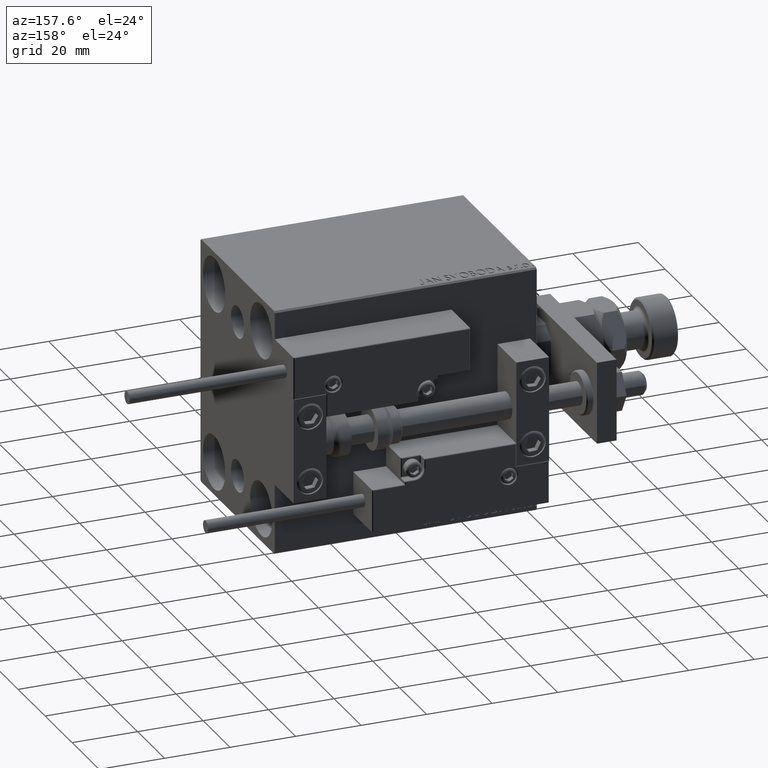
[diagram: clean part render]
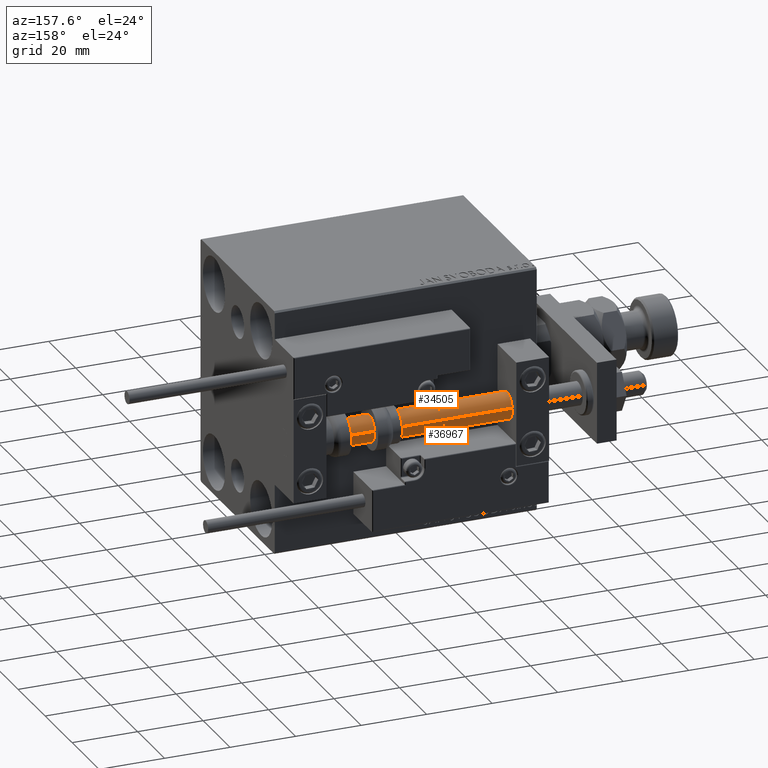
[diagram: same view with one multi-face feature highlighted, each face labeled with its STEP entity id]
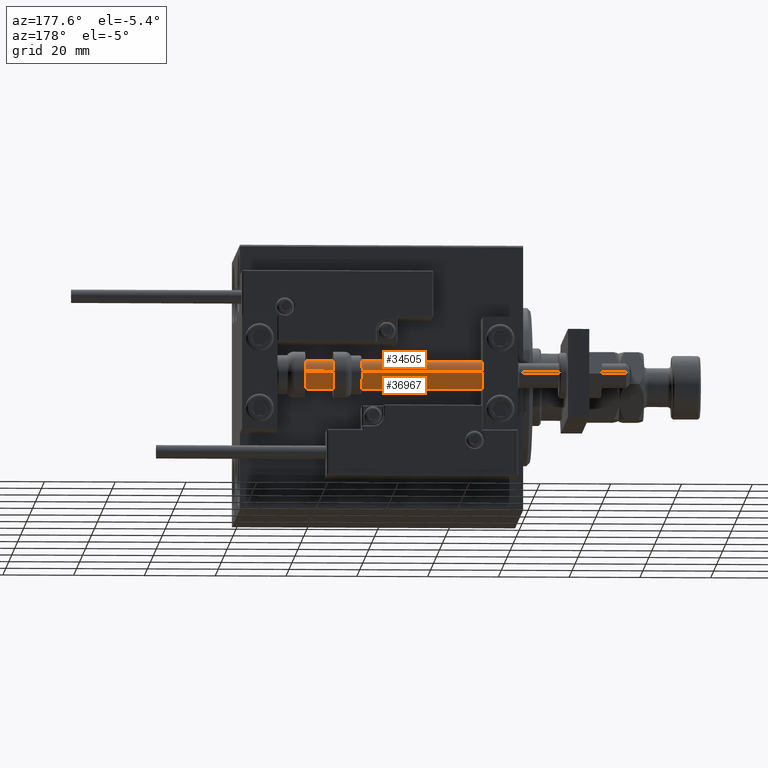
[diagram: same view with one multi-face feature highlighted, each face labeled with its STEP entity id]
A machine part, auxiliary view. The highlighted faces form ONE feature: a constant-radius fillet chain: 2 tangent blend faces with common blend radius 4 mm. The faces share edges in the B-rep.
A second angle (auxiliary view) of the same feature is appended — it is thin or edge-on in the first view.
Their STEP definitions:
[1] entity #36967 (Cylinder):
#1838 = CARTESIAN_POINT ( 'NONE',  ( -4.000000000000000000, 0.000000000000000000, 2.000000000000029310 ) ) ;
#2756 = DIRECTION ( 'NONE',  ( 1.000000000000000000, 0.000000000000000000, 0.000000000000000000 ) ) ;
#3069 = VERTEX_POINT ( 'NONE', #25364 ) ;
#3440 = VERTEX_POINT ( 'NONE', #1838 ) ;
#3769 = VERTEX_POINT ( 'NONE', #25509 ) ;
#7149 = EDGE_CURVE ( 'NONE', #3440, #49816, #12414, .T. ) ;
#7436 = DIRECTION ( 'NONE',  ( 0.000000000000000000, 0.000000000000000000, 1.000000000000000000 ) ) ;
#8749 = DIRECTION ( 'NONE',  ( 1.000000000000000000, 0.000000000000000000, 0.000000000000000000 ) ) ;
#11356 = CARTESIAN_POINT ( 'NONE',  ( 0.000000000000000000, 0.000000000000000000, 80.00000000000000000 ) ) ;
#12414 = CIRCLE ( 'NONE', #46540, 4.000000000000000000 ) ;
#12514 = LINE ( 'NONE', #48495, #37651 ) ;
#13056 = DIRECTION ( 'NONE',  ( -0.000000000000000000, -0.000000000000000000, -1.000000000000000000 ) ) ;
#14251 = EDGE_LOOP ( 'NONE', ( #21746, #14927, #19654, #32124 ) ) ;
#14415 = CARTESIAN_POINT ( 'NONE',  ( 4.000000000000000000, 4.898587196589412829E-16, 2.000000000000029310 ) ) ;
#14927 = ORIENTED_EDGE ( 'NONE', *, *, #22255, .F. ) ;
#19329 = EDGE_CURVE ( 'NONE', #3069, #3440, #49295, .T. ) ;
#19654 = ORIENTED_EDGE ( 'NONE', *, *, #19329, .T. ) ;
#20064 = DIRECTION ( 'NONE',  ( -0.000000000000000000, -0.000000000000000000, -1.000000000000000000 ) ) ;
#21007 = AXIS2_PLACEMENT_3D ( 'NONE', #11356, #7436, #2756 ) ;
#21114 = CARTESIAN_POINT ( 'NONE',  ( -4.000000000000000000, 0.000000000000000000, 80.00000000000000000 ) ) ;
#21746 = ORIENTED_EDGE ( 'NONE', *, *, #22924, .F. ) ;
#22255 = EDGE_CURVE ( 'NONE', #3069, #3769, #42693, .T. ) ;
#22924 = EDGE_CURVE ( 'NONE', #3769, #49816, #12514, .T. ) ;
#25364 = CARTESIAN_POINT ( 'NONE',  ( -4.000000000000000000, 0.000000000000000000, 80.00000000000000000 ) ) ;
#25509 = CARTESIAN_POINT ( 'NONE',  ( 4.000000000000000000, 4.898587196589412829E-16, 80.00000000000000000 ) ) ;
#26247 = AXIS2_PLACEMENT_3D ( 'NONE', #48796, #13056, #43584 ) ;
#28544 = CARTESIAN_POINT ( 'NONE',  ( 0.000000000000000000, 0.000000000000000000, 2.000000000000029310 ) ) ;
#32124 = ORIENTED_EDGE ( 'NONE', *, *, #7149, .T. ) ;
#32350 = FACE_OUTER_BOUND ( 'NONE', #14251, .T. ) ;
#32719 = DIRECTION ( 'NONE',  ( -0.000000000000000000, -0.000000000000000000, 1.000000000000000000 ) ) ;
#33519 = VECTOR ( 'NONE', #41713, 1000.000000000000000 ) ;
#36967 = ADVANCED_FACE ( 'NONE', ( #32350 ), #48277, .T. ) ;
#37651 = VECTOR ( 'NONE', #20064, 1000.000000000000000 ) ;
#41713 = DIRECTION ( 'NONE',  ( -0.000000000000000000, -0.000000000000000000, -1.000000000000000000 ) ) ;
#42693 = CIRCLE ( 'NONE', #21007, 4.000000000000000000 ) ;
#43584 = DIRECTION ( 'NONE',  ( -1.000000000000000000, 0.000000000000000000, 0.000000000000000000 ) ) ;
#46540 = AXIS2_PLACEMENT_3D ( 'NONE', #28544, #32719, #8749 ) ;
#48277 = CYLINDRICAL_SURFACE ( 'NONE', #26247, 4.000000000000000000 ) ;
#48495 = CARTESIAN_POINT ( 'NONE',  ( 4.000000000000000000, 4.898587196589412829E-16, 80.00000000000000000 ) ) ;
#48796 = CARTESIAN_POINT ( 'NONE',  ( 0.000000000000000000, 0.000000000000000000, 80.00000000000000000 ) ) ;
#49295 = LINE ( 'NONE', #21114, #33519 ) ;
#49816 = VERTEX_POINT ( 'NONE', #14415 ) ;
[2] entity #34505 (Cylinder):
#1838 = CARTESIAN_POINT ( 'NONE',  ( -4.000000000000000000, 0.000000000000000000, 2.000000000000029310 ) ) ;
#3069 = VERTEX_POINT ( 'NONE', #25364 ) ;
#3440 = VERTEX_POINT ( 'NONE', #1838 ) ;
#3769 = VERTEX_POINT ( 'NONE', #25509 ) ;
#4886 = DIRECTION ( 'NONE',  ( 0.000000000000000000, 0.000000000000000000, 1.000000000000000000 ) ) ;
#5647 = DIRECTION ( 'NONE',  ( -0.000000000000000000, -0.000000000000000000, -1.000000000000000000 ) ) ;
#6090 = EDGE_CURVE ( 'NONE', #49816, #3440, #40635, .T. ) ;
#6687 = CYLINDRICAL_SURFACE ( 'NONE', #36148, 4.000000000000000000 ) ;
#10334 = FACE_OUTER_BOUND ( 'NONE', #37132, .T. ) ;
#12514 = LINE ( 'NONE', #48495, #37651 ) ;
#14415 = CARTESIAN_POINT ( 'NONE',  ( 4.000000000000000000, 4.898587196589412829E-16, 2.000000000000029310 ) ) ;
#16951 = AXIS2_PLACEMENT_3D ( 'NONE', #44263, #4886, #44773 ) ;
#19329 = EDGE_CURVE ( 'NONE', #3069, #3440, #49295, .T. ) ;
#20064 = DIRECTION ( 'NONE',  ( -0.000000000000000000, -0.000000000000000000, -1.000000000000000000 ) ) ;
#21114 = CARTESIAN_POINT ( 'NONE',  ( -4.000000000000000000, 0.000000000000000000, 80.00000000000000000 ) ) ;
#21651 = ORIENTED_EDGE ( 'NONE', *, *, #22924, .T. ) ;
#22576 = CARTESIAN_POINT ( 'NONE',  ( 0.000000000000000000, 0.000000000000000000, 80.00000000000000000 ) ) ;
#22924 = EDGE_CURVE ( 'NONE', #3769, #49816, #12514, .T. ) ;
#23803 = DIRECTION ( 'NONE',  ( 1.000000000000000000, 0.000000000000000000, 0.000000000000000000 ) ) ;
#25364 = CARTESIAN_POINT ( 'NONE',  ( -4.000000000000000000, 0.000000000000000000, 80.00000000000000000 ) ) ;
#25377 = EDGE_CURVE ( 'NONE', #3769, #3069, #50295, .T. ) ;
#25509 = CARTESIAN_POINT ( 'NONE',  ( 4.000000000000000000, 4.898587196589412829E-16, 80.00000000000000000 ) ) ;
#31618 = DIRECTION ( 'NONE',  ( -0.000000000000000000, -0.000000000000000000, 1.000000000000000000 ) ) ;
#31876 = CARTESIAN_POINT ( 'NONE',  ( 0.000000000000000000, 0.000000000000000000, 2.000000000000029310 ) ) ;
#33519 = VECTOR ( 'NONE', #41713, 1000.000000000000000 ) ;
#34105 = ORIENTED_EDGE ( 'NONE', *, *, #25377, .F. ) ;
#34505 = ADVANCED_FACE ( 'NONE', ( #10334 ), #6687, .T. ) ;
#35489 = ORIENTED_EDGE ( 'NONE', *, *, #6090, .T. ) ;
#36148 = AXIS2_PLACEMENT_3D ( 'NONE', #22576, #5647, #41884 ) ;
#37132 = EDGE_LOOP ( 'NONE', ( #34105, #21651, #35489, #46765 ) ) ;
#37651 = VECTOR ( 'NONE', #20064, 1000.000000000000000 ) ;
#38965 = AXIS2_PLACEMENT_3D ( 'NONE', #31876, #31618, #23803 ) ;
#40635 = CIRCLE ( 'NONE', #38965, 4.000000000000000000 ) ;
#41713 = DIRECTION ( 'NONE',  ( -0.000000000000000000, -0.000000000000000000, -1.000000000000000000 ) ) ;
#41884 = DIRECTION ( 'NONE',  ( -1.000000000000000000, 0.000000000000000000, 0.000000000000000000 ) ) ;
#44263 = CARTESIAN_POINT ( 'NONE',  ( 0.000000000000000000, 0.000000000000000000, 80.00000000000000000 ) ) ;
#44773 = DIRECTION ( 'NONE',  ( 1.000000000000000000, 0.000000000000000000, 0.000000000000000000 ) ) ;
#46765 = ORIENTED_EDGE ( 'NONE', *, *, #19329, .F. ) ;
#48495 = CARTESIAN_POINT ( 'NONE',  ( 4.000000000000000000, 4.898587196589412829E-16, 80.00000000000000000 ) ) ;
#49295 = LINE ( 'NONE', #21114, #33519 ) ;
#49816 = VERTEX_POINT ( 'NONE', #14415 ) ;
#50295 = CIRCLE ( 'NONE', #16951, 4.000000000000000000 ) ;